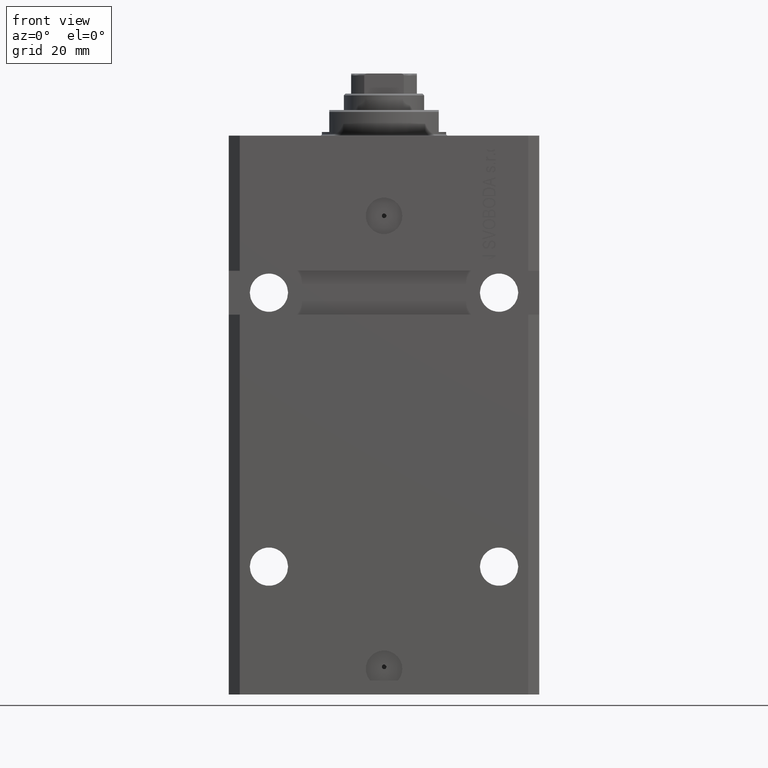
[diagram: clean part render]
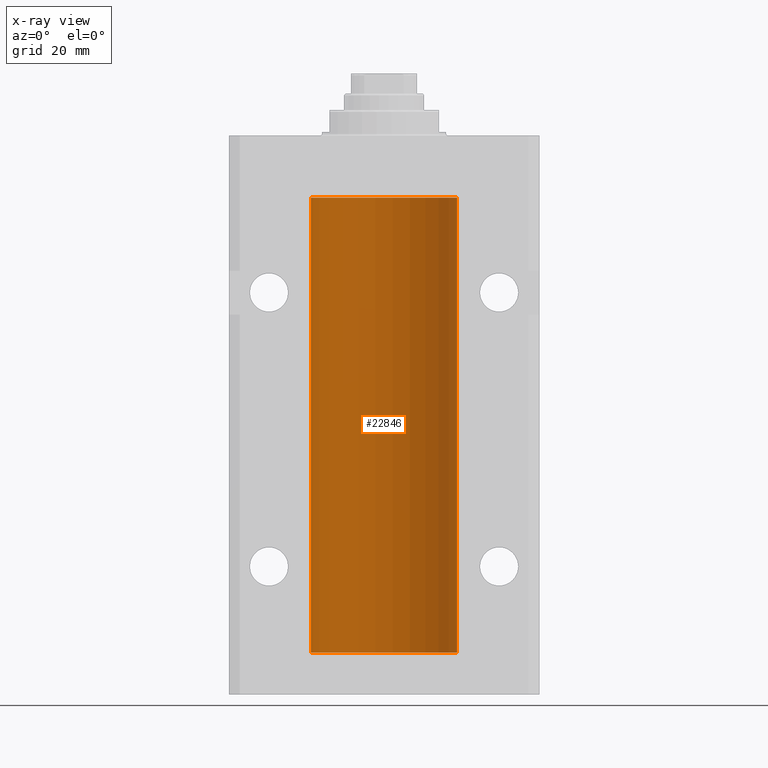
[diagram: x-ray — body ghosted, one internal face saturated and labeled with its STEP entity id]
A machine part, front view, then the same camera in x-ray: the body is ghosted and one INTERNAL B-rep face — a face not visible from any outside direction — is saturated and labeled: STEP entity #22846.
In plain terms, the highlighted cylindrical surface (partial cylindrical patch) has radius 20 mm, axis along (0, 0, 1).
Its self-contained STEP definition (entity closure, byte-faithful):
#408 = VERTEX_POINT ( 'NONE', #42643 ) ;
#654 = CARTESIAN_POINT ( 'NONE',  ( -19.99769349528941120, 0.3253804398728645242, -24.55855820727680339 ) ) ;
#1133 = VERTEX_POINT ( 'NONE', #14731 ) ;
#1406 = AXIS2_PLACEMENT_3D ( 'NONE', #29951, #9067, #43934 ) ;
#1438 = VECTOR ( 'NONE', #44574, 1000.000000000000000 ) ;
#1960 = FACE_OUTER_BOUND ( 'NONE', #39063, .T. ) ;
#2868 = CARTESIAN_POINT ( 'NONE',  ( -19.99023380173166231, 0.6249420416828387337, -138.8367079305639606 ) ) ;
#3306 = CARTESIAN_POINT ( 'NONE',  ( -19.99256581701871482, 0.5573276956901845880, -138.6734856577095059 ) ) ;
#3538 = CARTESIAN_POINT ( 'NONE',  ( -20.00000000000010303, 3.580159249456421507E-13, -139.6250000000033253 ) ) ;
#5939 = CARTESIAN_POINT ( 'NONE',  ( -19.99999999999999645, 0.08259581631026780002, -23.37500000000000000 ) ) ;
#6076 = CARTESIAN_POINT ( 'NONE',  ( -19.99253506710755346, 0.5587120480776690545, -139.3251162083025463 ) ) ;
#6317 = VECTOR ( 'NONE', #38162, 1000.000000000000000 ) ;
#6532 = CARTESIAN_POINT ( 'NONE',  ( -19.99766197842594195, 0.3150331617867615508, -138.4540207010250299 ) ) ;
#7752 = CARTESIAN_POINT ( 'NONE',  ( -19.99253506710754991, 0.5587120480776751608, -24.32511620830248589 ) ) ;
#9067 = DIRECTION ( 'NONE',  ( -0.000000000000000000, -0.000000000000000000, 1.000000000000000000 ) ) ;
#9159 = AXIS2_PLACEMENT_3D ( 'NONE', #30745, #23179, #37175 ) ;
#9337 = EDGE_CURVE ( 'NONE', #19478, #1133, #23845, .T. ) ;
#10120 = EDGE_CURVE ( 'NONE', #28669, #1133, #30075, .T. ) ;
#10178 = DIRECTION ( 'NONE',  ( -0.000000000000000000, -0.000000000000000000, 1.000000000000000000 ) ) ;
#11831 = EDGE_CURVE ( 'NONE', #408, #21852, #17739, .T. ) ;
#12868 = CARTESIAN_POINT ( 'NONE',  ( -20.00000000000000000, 2.449293598294706513E-15, -141.5999999999999943 ) ) ;
#12875 = VECTOR ( 'NONE', #27315, 1000.000000000000000 ) ;
#13291 = CARTESIAN_POINT ( 'NONE',  ( -19.99638934703457593, 0.3843678041337688644, -23.50046362978100944 ) ) ;
#13522 = AXIS2_PLACEMENT_3D ( 'NONE', #30625, #41170, #16875 ) ;
#13869 = CARTESIAN_POINT ( 'NONE',  ( -20.00000000000010303, 3.580159249456421507E-13, -139.6250000000033253 ) ) ;
#14731 = CARTESIAN_POINT ( 'NONE',  ( -20.00000000000000000, 2.449293598294706513E-15, -17.00000000000000000 ) ) ;
#16875 = DIRECTION ( 'NONE',  ( 1.000000000000000000, 0.000000000000000000, 0.000000000000000000 ) ) ;
#16884 = CARTESIAN_POINT ( 'NONE',  ( -19.99023018003212471, 0.6250578794725458742, -139.1628480970496753 ) ) ;
#17090 = CARTESIAN_POINT ( 'NONE',  ( -20.00000000000000000, -1.756252550797319649E-14, -138.3749999999999716 ) ) ;
#17218 = ORIENTED_EDGE ( 'NONE', *, *, #45055, .T. ) ;
#17739 = LINE ( 'NONE', #35161, #6317 ) ;
#19081 = EDGE_CURVE ( 'NONE', #29279, #19478, #27826, .T. ) ;
#19478 = VERTEX_POINT ( 'NONE', #29736 ) ;
#19734 = B_SPLINE_CURVE_WITH_KNOTS ( 'NONE', 3,
 ( #17090, #37740, #41179, #6532, #28088, #3306, #2868, #16884, #6076, #34511, #20315, #13869 ),
 .UNSPECIFIED., .F., .F.,
 ( 4, 2, 2, 2, 2, 4 ),
 ( 5.247116368830962784E-19, 0.0002442693137305545852, 0.0004885386274611086283, 0.0009770772549221576255, 0.001465615882383206840, 0.001954154509844256270 ),
 .UNSPECIFIED. ) ;
#19946 = CARTESIAN_POINT ( 'NONE',  ( -19.99256581701871482, 0.5573276956902001311, -23.67348565770948809 ) ) ;
#20116 = CIRCLE ( 'NONE', #13522, 20.00000000000000000 ) ;
#20315 = CARTESIAN_POINT ( 'NONE',  ( -19.99999999999999645, 0.1631688615953307553, -139.6249999999998010 ) ) ;
#20330 = ORIENTED_EDGE ( 'NONE', *, *, #20665, .F. ) ;
#20332 = B_SPLINE_CURVE_WITH_KNOTS ( 'NONE', 3,
 ( #23390, #5939, #44708, #41256, #13291, #19946, #31832, #38965, #7752, #654, #38499, #32067 ),
 .UNSPECIFIED., .F., .F.,
 ( 4, 2, 2, 2, 2, 4 ),
 ( 5.848927291235706941E-19, 0.0002442693137305304075, 0.0004885386274610601645, 0.0009770772549221123059, 0.001465615882383164339, 0.001954154509844215938 ),
 .UNSPECIFIED. ) ;
#20513 = LINE ( 'NONE', #44810, #30755 ) ;
#20665 = EDGE_CURVE ( 'NONE', #37353, #36403, #20513, .T. ) ;
#21852 = VERTEX_POINT ( 'NONE', #40215 ) ;
#21879 = CARTESIAN_POINT ( 'NONE',  ( -20.00000000000000000, 2.449293598294706513E-15, -141.5999999999999943 ) ) ;
#22846 = ADVANCED_FACE ( 'NONE', ( #1960 ), #30402, .F. ) ;
#23179 = DIRECTION ( 'NONE',  ( 0.000000000000000000, 0.000000000000000000, 1.000000000000000000 ) ) ;
#23390 = CARTESIAN_POINT ( 'NONE',  ( -20.00000000000000000, -2.867584836844214272E-15, -23.37500000000000000 ) ) ;
#23845 = CIRCLE ( 'NONE', #9159, 20.00000000000000000 ) ;
#23877 = ORIENTED_EDGE ( 'NONE', *, *, #10120, .F. ) ;
#27315 = DIRECTION ( 'NONE',  ( -0.000000000000000000, -0.000000000000000000, 1.000000000000000000 ) ) ;
#27826 = LINE ( 'NONE', #30588, #1438 ) ;
#28088 = CARTESIAN_POINT ( 'NONE',  ( -19.99638934703457238, 0.3843678041337506568, -138.5004636297809952 ) ) ;
#28669 = VERTEX_POINT ( 'NONE', #40587 ) ;
#28877 = ORIENTED_EDGE ( 'NONE', *, *, #9337, .T. ) ;
#29175 = EDGE_CURVE ( 'NONE', #29279, #37353, #20116, .T. ) ;
#29279 = VERTEX_POINT ( 'NONE', #43397 ) ;
#29736 = CARTESIAN_POINT ( 'NONE',  ( 20.00000000000000000, 0.000000000000000000, -17.00000000000000000 ) ) ;
#29951 = CARTESIAN_POINT ( 'NONE',  ( 0.000000000000000000, 0.000000000000000000, -141.5999999999999943 ) ) ;
#30075 = LINE ( 'NONE', #12868, #12875 ) ;
#30402 = CYLINDRICAL_SURFACE ( 'NONE', #1406, 20.00000000000000000 ) ;
#30588 = CARTESIAN_POINT ( 'NONE',  ( 20.00000000000000000, 0.000000000000000000, -141.5999999999999943 ) ) ;
#30625 = CARTESIAN_POINT ( 'NONE',  ( 0.000000000000000000, 0.000000000000000000, -141.5999999999999943 ) ) ;
#30745 = CARTESIAN_POINT ( 'NONE',  ( 0.000000000000000000, 0.000000000000000000, -17.00000000000000000 ) ) ;
#30755 = VECTOR ( 'NONE', #10178, 1000.000000000000000 ) ;
#31832 = CARTESIAN_POINT ( 'NONE',  ( -19.99023380173166231, 0.6249420416828462832, -23.83670793056396064 ) ) ;
#31946 = ORIENTED_EDGE ( 'NONE', *, *, #29175, .F. ) ;
#32067 = CARTESIAN_POINT ( 'NONE',  ( -20.00000000000010303, 3.580159282543646009E-13, -24.62500000000332889 ) ) ;
#33874 = ORIENTED_EDGE ( 'NONE', *, *, #19081, .T. ) ;
#34511 = CARTESIAN_POINT ( 'NONE',  ( -19.99769349528941120, 0.3253804398728610270, -139.5585582072767750 ) ) ;
#35161 = CARTESIAN_POINT ( 'NONE',  ( -20.00000000000000000, 2.449293598294706513E-15, -141.5999999999999943 ) ) ;
#36355 = EDGE_CURVE ( 'NONE', #408, #36403, #19734, .T. ) ;
#36403 = VERTEX_POINT ( 'NONE', #3538 ) ;
#37175 = DIRECTION ( 'NONE',  ( 1.000000000000000000, 0.000000000000000000, 0.000000000000000000 ) ) ;
#37353 = VERTEX_POINT ( 'NONE', #21879 ) ;
#37740 = CARTESIAN_POINT ( 'NONE',  ( -20.00000000000000000, 0.08259581631025542103, -138.3749999999999716 ) ) ;
#38096 = ORIENTED_EDGE ( 'NONE', *, *, #36355, .T. ) ;
#38162 = DIRECTION ( 'NONE',  ( -0.000000000000000000, -0.000000000000000000, 1.000000000000000000 ) ) ;
#38499 = CARTESIAN_POINT ( 'NONE',  ( -20.00000000000000000, 0.1631688615953320320, -24.62499999999985434 ) ) ;
#38965 = CARTESIAN_POINT ( 'NONE',  ( -19.99023018003212471, 0.6250578794725500931, -24.16284809704970371 ) ) ;
#39063 = EDGE_LOOP ( 'NONE', ( #20330, #31946, #33874, #28877, #23877, #17218, #40035, #38096 ) ) ;
#40035 = ORIENTED_EDGE ( 'NONE', *, *, #11831, .F. ) ;
#40215 = CARTESIAN_POINT ( 'NONE',  ( -20.00000000000010303, 3.580159282543646009E-13, -24.62500000000332889 ) ) ;
#40587 = CARTESIAN_POINT ( 'NONE',  ( -20.00000000000000000, -2.867584836844214272E-15, -23.37500000000000000 ) ) ;
#41170 = DIRECTION ( 'NONE',  ( 0.000000000000000000, 0.000000000000000000, 1.000000000000000000 ) ) ;
#41179 = CARTESIAN_POINT ( 'NONE',  ( -19.99947377218718358, 0.1636439183262808073, -138.3912636400466170 ) ) ;
#41256 = CARTESIAN_POINT ( 'NONE',  ( -19.99766197842594906, 0.3150331617867667688, -23.45402070102505476 ) ) ;
#42643 = CARTESIAN_POINT ( 'NONE',  ( -20.00000000000000000, -1.756252550797319649E-14, -138.3749999999999716 ) ) ;
#43397 = CARTESIAN_POINT ( 'NONE',  ( 20.00000000000000000, 0.000000000000000000, -141.5999999999999943 ) ) ;
#43934 = DIRECTION ( 'NONE',  ( 1.000000000000000000, 0.000000000000000000, 0.000000000000000000 ) ) ;
#44574 = DIRECTION ( 'NONE',  ( -0.000000000000000000, -0.000000000000000000, 1.000000000000000000 ) ) ;
#44708 = CARTESIAN_POINT ( 'NONE',  ( -19.99947377218718714, 0.1636439183262877461, -23.39126364004656011 ) ) ;
#44810 = CARTESIAN_POINT ( 'NONE',  ( -20.00000000000000000, 2.449293598294706513E-15, -141.5999999999999943 ) ) ;
#45055 = EDGE_CURVE ( 'NONE', #28669, #21852, #20332, .T. ) ;